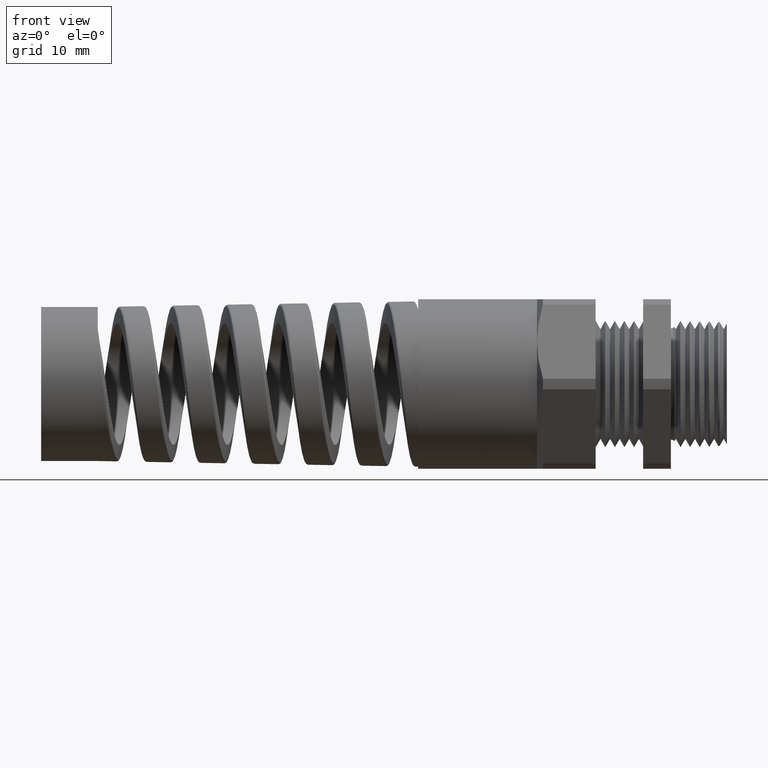
[diagram: clean part render]
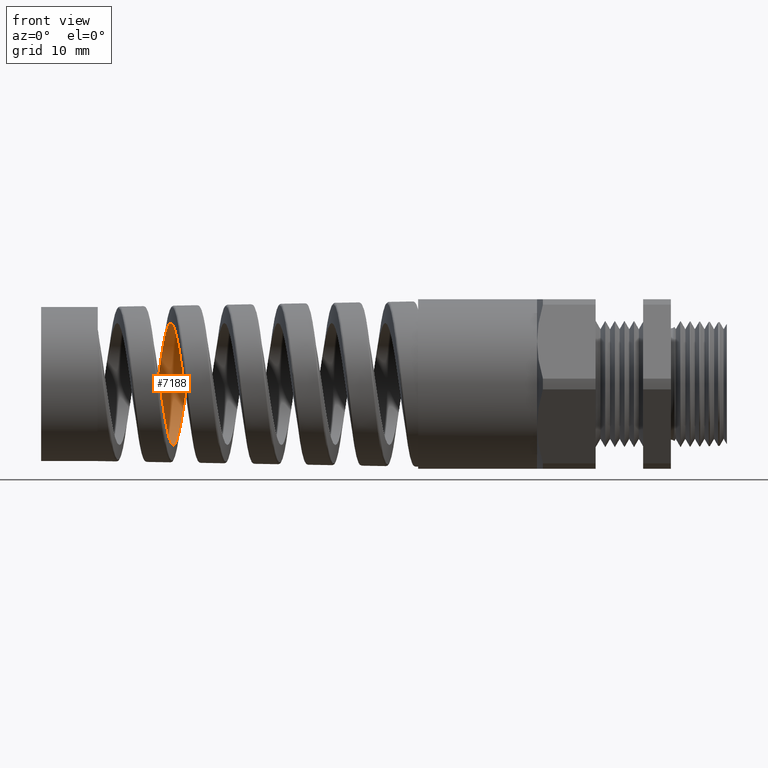
[diagram: same view with one face highlighted and labeled with its STEP entity id]
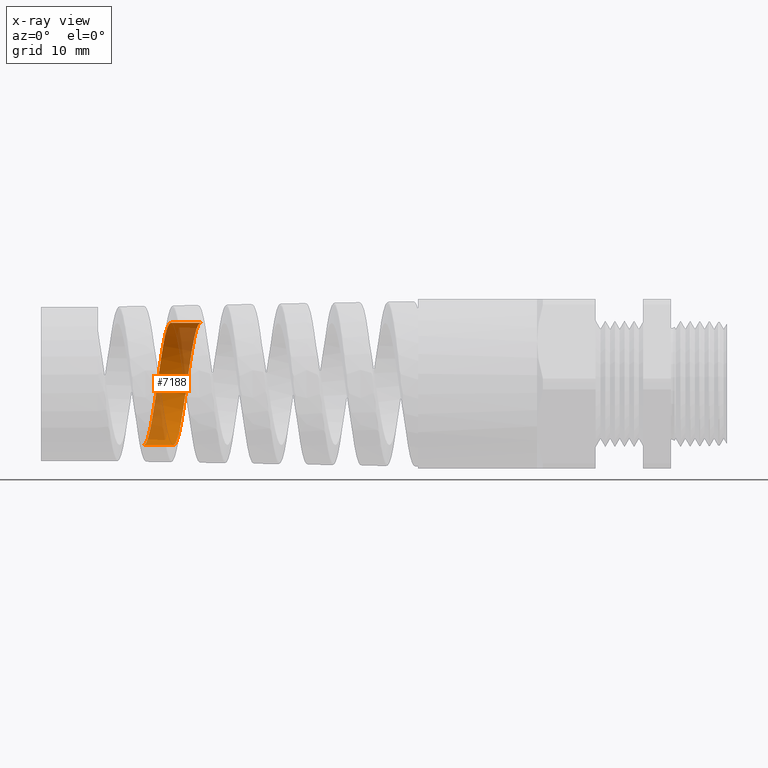
[diagram: x-ray of the same camera — body ghosted, the highlighted face saturated]
A machine part, front view. The second image highlights one B-rep face of the part: STEP entity #7188.
The next image is the same camera in x-ray: the body ghosted, the highlighted face saturated — about 35% of this face is hidden behind the body in this view.
In plain terms, the highlighted cylindrical surface (partial cylindrical patch) has radius 9.7037 mm, axis along (1, 0, 0).
Its self-contained STEP definition (entity closure, byte-faithful):
#2 = VERTEX_POINT ( 'NONE', #1132 ) ;
#70 = VERTEX_POINT ( 'NONE', #1241 ) ;
#83 = EDGE_CURVE ( 'NONE', #2, #6991, #1300, .T. ) ;
#104 = VERTEX_POINT ( 'NONE', #1446 ) ;
#111 = EDGE_CURVE ( 'NONE', #70, #104, #1440, .T. ) ;
#245 = ORIENTED_EDGE ( 'NONE', *, *, #2478, .F. ) ;
#269 = ORIENTED_EDGE ( 'NONE', *, *, #270, .F. ) ;
#270 = EDGE_CURVE ( 'NONE', #2, #70, #1744, .T. ) ;
#279 = ORIENTED_EDGE ( 'NONE', *, *, #83, .T. ) ;
#320 = ORIENTED_EDGE ( 'NONE', *, *, #111, .F. ) ;
#1132 = CARTESIAN_POINT ( 'NONE',  ( -3.296575364473070200, 4.589141805794303700E-013, -0.3820352270837504800 ) ) ;
#1241 = CARTESIAN_POINT ( 'NONE',  ( -3.128765924978659000, 8.109384056380113200E-013, 0.3820352270837503700 ) ) ;
#1297 = DIRECTION ( 'NONE',  ( 1.000000000000000000, 0.0000000000000000000, 0.0000000000000000000 ) ) ;
#1298 = VECTOR ( 'NONE', #1297, 39.37007874015748100 ) ;
#1299 = CARTESIAN_POINT ( 'NONE',  ( 0.4924815508901369000, 0.0000000000000000000, -0.3820352270837504300 ) ) ;
#1300 = LINE ( 'NONE', #1299, #1298 ) ;
#1437 = DIRECTION ( 'NONE',  ( 1.000000000000000000, 0.0000000000000000000, 0.0000000000000000000 ) ) ;
#1438 = VECTOR ( 'NONE', #1437, 39.37007874015748100 ) ;
#1439 = CARTESIAN_POINT ( 'NONE',  ( 0.4924815508901369000, 4.678582180096471200E-017, 0.3820352270837504300 ) ) ;
#1440 = LINE ( 'NONE', #1439, #1438 ) ;
#1446 = CARTESIAN_POINT ( 'NONE',  ( -2.943606013613844200, -3.084000274097546900E-016, 0.3820352270837504800 ) ) ;
#1718 = CARTESIAN_POINT ( 'NONE',  ( -3.214422275983384500, 0.3820343625057118800, -0.01246792108577983400 ) ) ;
#1719 = CARTESIAN_POINT ( 'NONE',  ( -3.216159986408281000, 0.3814271716350501900, -0.02490442587715398900 ) ) ;
#1720 = CARTESIAN_POINT ( 'NONE',  ( -3.219649749557993400, 0.3789859551096202400, -0.04976508333594512100 ) ) ;
#1721 = CARTESIAN_POINT ( 'NONE',  ( -3.221409499024803700, 0.3771406257904312300, -0.06224334836824051100 ) ) ;
#1722 = CARTESIAN_POINT ( 'NONE',  ( -3.226683875169936000, 0.3697698712635535400, -0.09927055080782556900 ) ) ;
#1723 = CARTESIAN_POINT ( 'NONE',  ( -3.230150462719509500, 0.3625122936012769000, -0.1231096469922801600 ) ) ;
#1724 = CARTESIAN_POINT ( 'NONE',  ( -3.235377711119542100, 0.3482241241196795700, -0.1576259257845527000 ) ) ;
#1725 = CARTESIAN_POINT ( 'NONE',  ( -3.237124442591317500, 0.3428904081388051100, -0.1689228625443731400 ) ) ;
#1726 = CARTESIAN_POINT ( 'NONE',  ( -3.240641608983228800, 0.3310508970288448800, -0.1910865486113000300 ) ) ;
#1727 = CARTESIAN_POINT ( 'NONE',  ( -3.242409214754563300, 0.3245464095553035100, -0.2019328169828303900 ) ) ;
#1728 = CARTESIAN_POINT ( 'NONE',  ( -3.247652944585087000, 0.3037000803116248800, -0.2331146823761956500 ) ) ;
#1729 = CARTESIAN_POINT ( 'NONE',  ( -3.251111554994176300, 0.2879138636638588500, -0.2523513179160228300 ) ) ;
#1730 = CARTESIAN_POINT ( 'NONE',  ( -3.256348944776197700, 0.2614150824881285000, -0.2788713607263673700 ) ) ;
#1731 = CARTESIAN_POINT ( 'NONE',  ( -3.258112038044713700, 0.2520583703042809700, -0.2873596844681539600 ) ) ;
#1732 = CARTESIAN_POINT ( 'NONE',  ( -3.261627441414208100, 0.2326181057582193100, -0.3033114359392751800 ) ) ;
#1733 = CARTESIAN_POINT ( 'NONE',  ( -3.263373450457868900, 0.2225746779919143800, -0.3107516037899806800 ) ) ;
#1734 = CARTESIAN_POINT ( 'NONE',  ( -3.268601672403557600, 0.1915044106901634400, -0.3315079224579902700 ) ) ;
#1735 = CARTESIAN_POINT ( 'NONE',  ( -3.272074463792152200, 0.1695464311926412300, -0.3432745257291707200 ) ) ;
#1736 = CARTESIAN_POINT ( 'NONE',  ( -3.277348649729657600, 0.1346990718388253500, -0.3577222304828784900 ) ) ;
#1737 = CARTESIAN_POINT ( 'NONE',  ( -3.279111688676079200, 0.1228049308995456000, -0.3619751569895305900 ) ) ;
#1738 = CARTESIAN_POINT ( 'NONE',  ( -3.282603283275922700, 0.09888799168169959400, -0.3692265299677118300 ) ) ;
#1739 = CARTESIAN_POINT ( 'NONE',  ( -3.286078222292472700, 0.07472505295528338000, -0.3752741770703003600 ) ) ;
#1740 = CARTESIAN_POINT ( 'NONE',  ( -3.289555302649721300, 0.05008133907242661600, -0.3789447338481820000 ) ) ;
#1741 = CARTESIAN_POINT ( 'NONE',  ( -3.293050877117972100, 0.02519603276070081500, -0.3814084579131387700 ) ) ;
#1742 = CARTESIAN_POINT ( 'NONE',  ( -3.294817633912629200, 0.01256302795512091700, -0.3820352270837355000 ) ) ;
#1743 = CARTESIAN_POINT ( 'NONE',  ( -3.296575364473070200, 4.589141805794303700E-013, -0.3820352270837504800 ) ) ;
#1744 = B_SPLINE_CURVE_WITH_KNOTS ( 'NONE', 3,
 ( #1743, #1742, #1741, #1740, #1739, #1738, #1737, #1736, #1735, #1734, #1733, #1732, #1731, #1730, #1729, #1728, #1727, #1726, #1725, #1724, #1723, #1722, #1721, #1720, #1719, #1718, #1796, #1795, #1794, #1793, #1792, #1791, #1790, #1789, #1788, #1787, #1786, #1785, #1784, #1783, #1782, #1781, #1780, #1779, #1778, #1777, #1776, #1775, #1774 ),
 .UNSPECIFIED., .F., .F.,
 ( 4, 2, 1, 2, 2, 2, 2, 2, 2, 2, 2, 2, 2, 2, 2, 2, 2, 2, 2, 2, 2, 2, 2, 2, 4 ),
 ( 0.05278948051098766900, 0.05374784030101516900, 0.05470620009104267700, 0.05566455988107017700, 0.05662291967109768500, 0.05853963925115269300, 0.05949799904118020100, 0.06045635883120770900, 0.06237307841126273100, 0.06333143820129023800, 0.06428979799131774600, 0.06620651757137277500, 0.06716487736140028300, 0.06812323715142779000, 0.06908159694145529800, 0.07003995673148280500, 0.07195667631153782100, 0.07387339589159283600, 0.07579011547164785100, 0.07674847526167535800, 0.07770683505170286600, 0.07962355463175788100, 0.08154027421181289600, 0.08249863400184040400, 0.08345699379186791200 ),
 .UNSPECIFIED. ) ;
#1774 = CARTESIAN_POINT ( 'NONE',  ( -3.128765924978659000, 8.109384056380113200E-013, 0.3820352270837503700 ) ) ;
#1775 = CARTESIAN_POINT ( 'NONE',  ( -3.130517388304629600, 0.01253570671090188500, 0.3820352270837236700 ) ) ;
#1776 = CARTESIAN_POINT ( 'NONE',  ( -3.132286207010872100, 0.02519170379602617100, 0.3814094850376015300 ) ) ;
#1777 = CARTESIAN_POINT ( 'NONE',  ( -3.135789200283960900, 0.05012185000811738400, 0.3789401237247895200 ) ) ;
#1778 = CARTESIAN_POINT ( 'NONE',  ( -3.137531615817497500, 0.06245524140785411300, 0.3771009001812816700 ) ) ;
#1779 = CARTESIAN_POINT ( 'NONE',  ( -3.142755801450780200, 0.09906487137568195700, 0.3698058834684842000 ) ) ;
#1780 = CARTESIAN_POINT ( 'NONE',  ( -3.146240286914775600, 0.1230002602302710500, 0.3625708695531579800 ) ) ;
#1781 = CARTESIAN_POINT ( 'NONE',  ( -3.153289149809654000, 0.1695859131137584000, 0.3432598396821574000 ) ) ;
#1782 = CARTESIAN_POINT ( 'NONE',  ( -3.156754531794184500, 0.1915611551918684200, 0.3314739518705009900 ) ) ;
#1783 = CARTESIAN_POINT ( 'NONE',  ( -3.161971692022657300, 0.2226090320408592700, 0.3107266791575901100 ) ) ;
#1784 = CARTESIAN_POINT ( 'NONE',  ( -3.163713808401169600, 0.2326368853322845500, 0.3032958326538224800 ) ) ;
#1785 = CARTESIAN_POINT ( 'NONE',  ( -3.167221749750094100, 0.2520325425905172700, 0.2873810710496449400 ) ) ;
#1786 = CARTESIAN_POINT ( 'NONE',  ( -3.168991614263992200, 0.2614158036869624300, 0.2788716272600805800 ) ) ;
#1787 = CARTESIAN_POINT ( 'NONE',  ( -3.174246870829101400, 0.2879576666681621400, 0.2523055006141822200 ) ) ;
#1788 = CARTESIAN_POINT ( 'NONE',  ( -3.177715129430482800, 0.3037372754823812200, 0.2330621549950432900 ) ) ;
#1789 = CARTESIAN_POINT ( 'NONE',  ( -3.184695356983353600, 0.3314873936372597600, 0.1915474052760041100 ) ) ;
#1790 = CARTESIAN_POINT ( 'NONE',  ( -3.188231137687000100, 0.3434738069773687300, 0.1691093831817743500 ) ) ;
#1791 = CARTESIAN_POINT ( 'NONE',  ( -3.195196018369345700, 0.3625357929747467500, 0.1230448632484040800 ) ) ;
#1792 = CARTESIAN_POINT ( 'NONE',  ( -3.198660330161114300, 0.3697791230975652200, 0.09922057639922046700 ) ) ;
#1793 = CARTESIAN_POINT ( 'NONE',  ( -3.203930547098824600, 0.3771329576420642800, 0.06228361722634580300 ) ) ;
#1794 = CARTESIAN_POINT ( 'NONE',  ( -3.205700580478093800, 0.3789871158937936400, 0.04976120197090765100 ) ) ;
#1795 = CARTESIAN_POINT ( 'NONE',  ( -3.209202524274146200, 0.3814306451205666800, 0.02486109808503001900 ) ) ;
#1796 = CARTESIAN_POINT ( 'NONE',  ( -3.210943828512554900, 0.3820360898208137700, 0.01241488081980875900 ) ) ;
#2478 = EDGE_CURVE ( 'NONE', #104, #6991, #8039, .T. ) ;
#6991 = VERTEX_POINT ( 'NONE', #10361 ) ;
#7188 = ADVANCED_FACE ( 'NONE', ( #10488 ), #10486, .F. ) ;
#7988 = CARTESIAN_POINT ( 'NONE',  ( -3.112458545694458200, 1.068592222309207600E-012, -0.3820352270837507600 ) ) ;
#7989 = CARTESIAN_POINT ( 'NONE',  ( -3.110699524596981300, 0.01248849388481341500, -0.3820352270837155100 ) ) ;
#7990 = CARTESIAN_POINT ( 'NONE',  ( -3.108925785508733800, 0.02508032054564720800, -0.3814188996230579200 ) ) ;
#7991 = CARTESIAN_POINT ( 'NONE',  ( -3.105382337448779700, 0.05013616957509232900, -0.3789403171591462200 ) ) ;
#7992 = CARTESIAN_POINT ( 'NONE',  ( -3.103625492843190800, 0.06250883207596628900, -0.3770926268321776500 ) ) ;
#7993 = CARTESIAN_POINT ( 'NONE',  ( -3.098370026307629000, 0.09917108681019680400, -0.3697798866039885300 ) ) ;
#7994 = CARTESIAN_POINT ( 'NONE',  ( -3.094887655563546900, 0.1230093340649209300, -0.3625614563017192600 ) ) ;
#7995 = CARTESIAN_POINT ( 'NONE',  ( -3.089588286289734600, 0.1578251188246296800, -0.3481378238332782900 ) ) ;
#7996 = CARTESIAN_POINT ( 'NONE',  ( -3.087810345573264400, 0.1692602873207168200, -0.3427218597793976200 ) ) ;
#7997 = CARTESIAN_POINT ( 'NONE',  ( -3.084289673688038300, 0.1913122643677538100, -0.3309183215493262100 ) ) ;
#7998 = CARTESIAN_POINT ( 'NONE',  ( -3.080784558756859400, 0.2126768896068670100, -0.3180929372908762900 ) ) ;
#7999 = CARTESIAN_POINT ( 'NONE',  ( -3.077279994862765800, 0.2326842668003893400, -0.3032574362012903100 ) ) ;
#8000 = CARTESIAN_POINT ( 'NONE',  ( -3.073762547618323500, 0.2520027678945742600, -0.2874050201393283900 ) ) ;
#8001 = CARTESIAN_POINT ( 'NONE',  ( -3.071988970921595300, 0.2613607427644472600, -0.2789259644912832600 ) ) ;
#8002 = CARTESIAN_POINT ( 'NONE',  ( -3.066683950389549600, 0.2880325798229039800, -0.2522320654969726900 ) ) ;
#8003 = CARTESIAN_POINT ( 'NONE',  ( -3.063200232204845700, 0.3038170810507154200, -0.2329520653819227000 ) ) ;
#8004 = CARTESIAN_POINT ( 'NONE',  ( -3.057945933855984700, 0.3245761334099662200, -0.2018821204225511600 ) ) ;
#8005 = CARTESIAN_POINT ( 'NONE',  ( -3.056189854206519100, 0.3310061275997773200, -0.1911646072341365000 ) ) ;
#8006 = CARTESIAN_POINT ( 'NONE',  ( -3.052650957032371000, 0.3428578286445657100, -0.1689895644846607900 ) ) ;
#8007 = CARTESIAN_POINT ( 'NONE',  ( -3.050873341447720900, 0.3482548771385525200, -0.1575616657808600900 ) ) ;
#8008 = CARTESIAN_POINT ( 'NONE',  ( -3.045591989688002200, 0.3625859305193351300, -0.1229115563661170700 ) ) ;
#8009 = CARTESIAN_POINT ( 'NONE',  ( -3.042104934005349200, 0.3698055043639964500, -0.09909598020028831400 ) ) ;
#8010 = CARTESIAN_POINT ( 'NONE',  ( -3.036831839073442100, 0.3771266826471613700, -0.06231117373864944500 ) ) ;
#8011 = CARTESIAN_POINT ( 'NONE',  ( -3.035056867158766500, 0.3789835019929278500, -0.04980336752685674000 ) ) ;
#8012 = CARTESIAN_POINT ( 'NONE',  ( -3.031524144581066800, 0.3814373563501884400, -0.02478736332121474600 ) ) ;
#8013 = CARTESIAN_POINT ( 'NONE',  ( -3.029769945966723100, 0.3820400374125199600, -0.01230591637089844200 ) ) ;
#8014 = CARTESIAN_POINT ( 'NONE',  ( -3.024516437346596900, 0.3820255199108429900, 0.02505715453918359200 ) ) ;
#8015 = CARTESIAN_POINT ( 'NONE',  ( -3.021025977833490000, 0.3796028438738171500, 0.04985824887133562900 ) ) ;
#8016 = CARTESIAN_POINT ( 'NONE',  ( -3.015709547965519800, 0.3722380743129063400, 0.08687947453754708800 ) ) ;
#8017 = CARTESIAN_POINT ( 'NONE',  ( -3.013933848754194700, 0.3691643848050515400, 0.09911928239373159200 ) ) ;
#8018 = CARTESIAN_POINT ( 'NONE',  ( -3.010416419110684100, 0.3619003520905574900, 0.1230248361408003700 ) ) ;
#8019 = CARTESIAN_POINT ( 'NONE',  ( -3.008667092584985000, 0.3576992581642743900, 0.1347477927201313800 ) ) ;
#8020 = CARTESIAN_POINT ( 'NONE',  ( -3.005168325645410500, 0.3481734332239427900, 0.1577370829300213700 ) ) ;
#8021 = CARTESIAN_POINT ( 'NONE',  ( -3.003419071209060900, 0.3428487049374788200, 0.1690034460421047400 ) ) ;
#8022 = CARTESIAN_POINT ( 'NONE',  ( -2.999902846160882300, 0.3310584487921540100, 0.1910698896601603600 ) ) ;
#8023 = CARTESIAN_POINT ( 'NONE',  ( -2.998125994351790600, 0.3245519519161990100, 0.2019273292580264800 ) ) ;
#8024 = CARTESIAN_POINT ( 'NONE',  ( -2.992829074297224300, 0.3036098328786026600, 0.2332440532065175000 ) ) ;
#8025 = CARTESIAN_POINT ( 'NONE',  ( -2.989340963308946300, 0.2877938920053708700, 0.2524814042290557900 ) ) ;
#8026 = CARTESIAN_POINT ( 'NONE',  ( -2.984075202679491200, 0.2613597269784513300, 0.2789217185927220200 ) ) ;
#8027 = CARTESIAN_POINT ( 'NONE',  ( -2.982314608090558000, 0.2520934595298738300, 0.2873297686422838800 ) ) ;
#8028 = CARTESIAN_POINT ( 'NONE',  ( -2.978768402790301600, 0.2326237020255315600, 0.3033079648504227200 ) ) ;
#8029 = CARTESIAN_POINT ( 'NONE',  ( -2.976998501227566600, 0.2225001382640631700, 0.3108062355043968400 ) ) ;
#8030 = CARTESIAN_POINT ( 'NONE',  ( -2.971731462681691700, 0.1913450243328552500, 0.3316046557092169300 ) ) ;
#8031 = CARTESIAN_POINT ( 'NONE',  ( -2.968251740534590100, 0.1693966865328359600, 0.3433400208827161500 ) ) ;
#8032 = CARTESIAN_POINT ( 'NONE',  ( -2.962972387166913400, 0.1347072484165609800, 0.3577171300214047600 ) ) ;
#8033 = CARTESIAN_POINT ( 'NONE',  ( -2.961193031070120400, 0.1227813261847337000, 0.3619849656789050900 ) ) ;
#8034 = CARTESIAN_POINT ( 'NONE',  ( -2.957661480333965400, 0.09876324554467036400, 0.3692616833178377100 ) ) ;
#8035 = CARTESIAN_POINT ( 'NONE',  ( -2.955905992979838400, 0.08665204438654532100, 0.3722865871489251000 ) ) ;
#8036 = CARTESIAN_POINT ( 'NONE',  ( -2.950646358674264800, 0.05002240806059335400, 0.3795636093759112200 ) ) ;
#8037 = CARTESIAN_POINT ( 'NONE',  ( -2.947150972581397400, 0.02521048411014351800, 0.3820352270837502600 ) ) ;
#8038 = CARTESIAN_POINT ( 'NONE',  ( -2.943606013613844200, -3.084000274097546900E-016, 0.3820352270837504800 ) ) ;
#8039 = B_SPLINE_CURVE_WITH_KNOTS ( 'NONE', 3,
 ( #8038, #8037, #8036, #8035, #8034, #8033, #8032, #8031, #8030, #8029, #8028, #8027, #8026, #8025, #8024, #8023, #8022, #8021, #8020, #8019, #8018, #8017, #8016, #8015, #8014, #8013, #8012, #8011, #8010, #8009, #8008, #8007, #8006, #8005, #8004, #8003, #8002, #8001, #8000, #7999, #7998, #7997, #7996, #7995, #7994, #7993, #7992, #7991, #7990, #7989, #7988 ),
 .UNSPECIFIED., .F., .F.,
 ( 4, 2, 2, 2, 2, 2, 2, 2, 2, 2, 2, 2, 2, 2, 2, 2, 2, 2, 2, 2, 1, 2, 2, 2, 2, 4 ),
 ( 0.2492929731322504100, 0.2512077912559869700, 0.2521652003178552200, 0.2531226093797234700, 0.2550374275034600300, 0.2559948365653282900, 0.2569522456271965400, 0.2588670637509331000, 0.2598244728128013500, 0.2607818818746696100, 0.2617392909365379200, 0.2626966999984061700, 0.2646115181221426700, 0.2655689271840109800, 0.2665263362458792400, 0.2684411543696157400, 0.2693985634314840500, 0.2703559724933523000, 0.2722707906170888100, 0.2732281996789571200, 0.2741856087408253700, 0.2751430178026936200, 0.2761004268645618800, 0.2780152449882984400, 0.2789726540501666900, 0.2799300631120349400 ),
 .UNSPECIFIED. ) ;
#10361 = CARTESIAN_POINT ( 'NONE',  ( -3.112458545694458200, 1.068592222309207600E-012, -0.3820352270837507600 ) ) ;
#10482 = DIRECTION ( 'NONE',  ( 0.0000000000000000000, 0.0000000000000000000, -1.000000000000000000 ) ) ;
#10483 = DIRECTION ( 'NONE',  ( 1.000000000000000000, 0.0000000000000000000, 0.0000000000000000000 ) ) ;
#10484 = CARTESIAN_POINT ( 'NONE',  ( 0.4924815508901369000, 0.0000000000000000000, 0.0000000000000000000 ) ) ;
#10485 = AXIS2_PLACEMENT_3D ( 'NONE', #10484, #10483, #10482 ) ;
#10486 = CYLINDRICAL_SURFACE ( 'NONE', #10485, 0.3820352270837504300 ) ;
#10488 = FACE_OUTER_BOUND ( 'NONE', #11281, .T. ) ;
#11281 = EDGE_LOOP ( 'NONE', ( #320, #269, #279, #245 ) ) ;